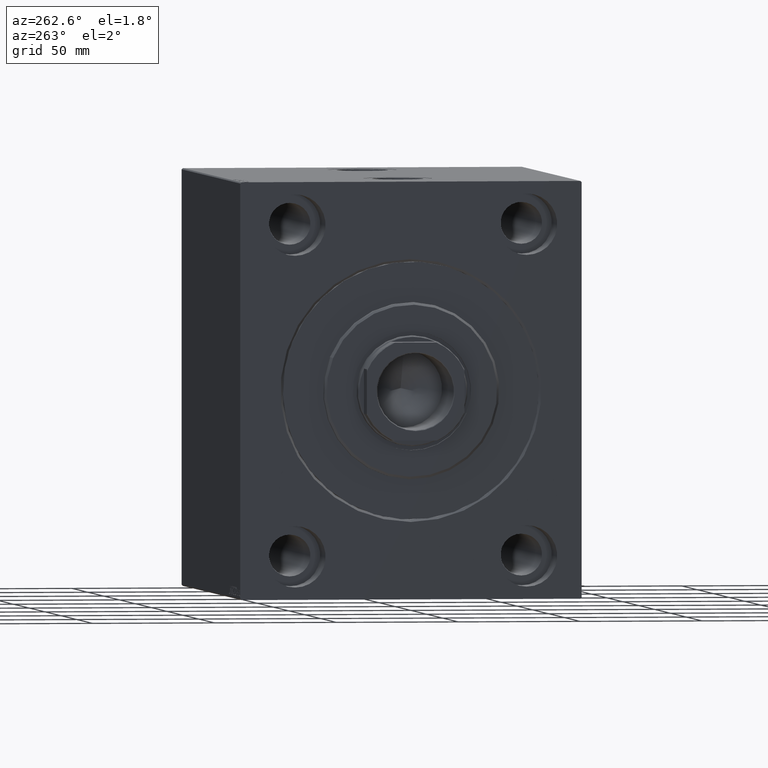
[diagram: clean part render]
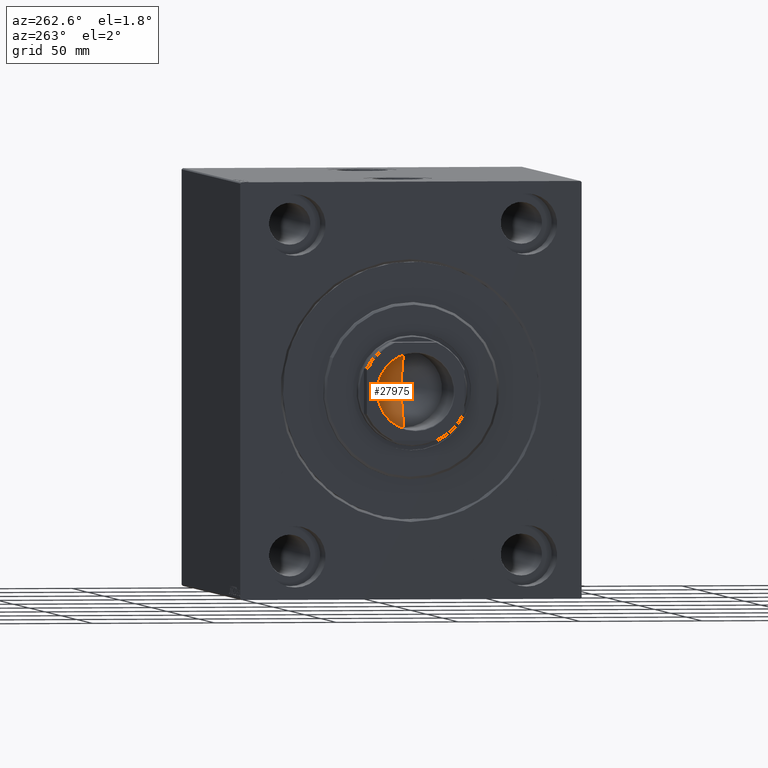
[diagram: same view with one face highlighted and labeled with its STEP entity id]
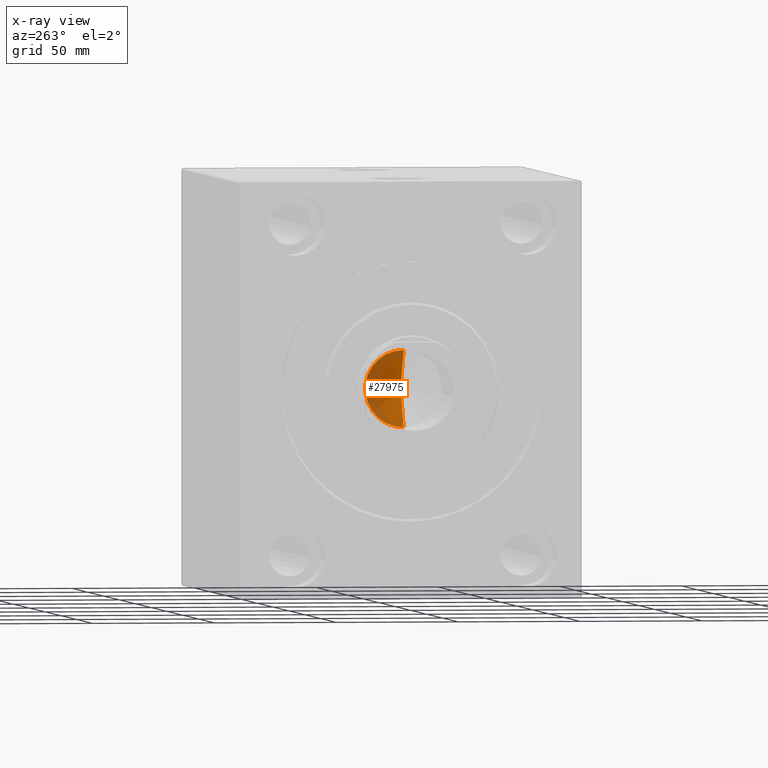
[diagram: x-ray of the same camera — body ghosted, the highlighted face saturated]
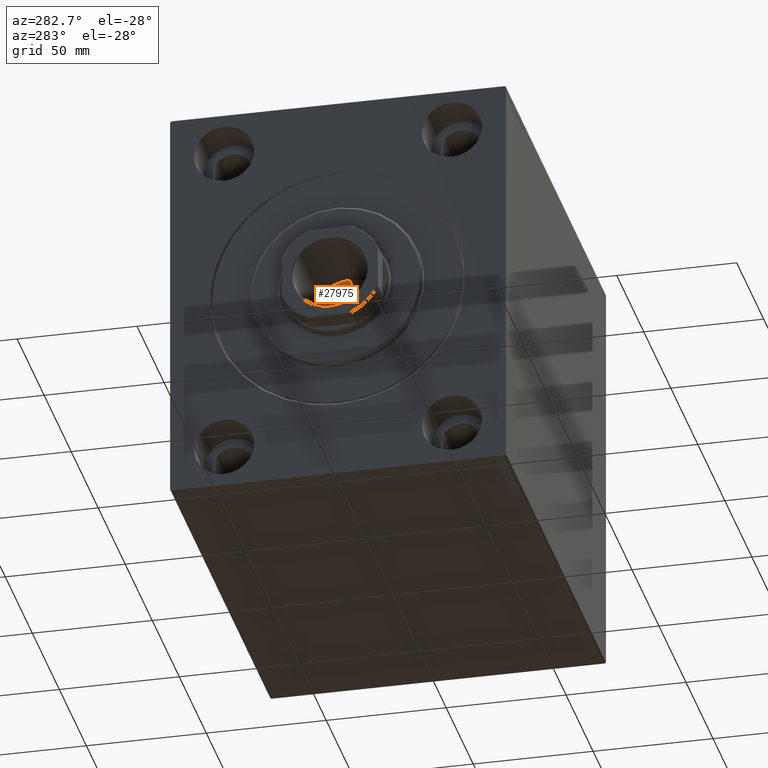
[diagram: same view with one face highlighted and labeled with its STEP entity id]
A machine part, auxiliary view. The second image highlights one B-rep face of the part: STEP entity #27975.
The next image is the same camera in x-ray: the body ghosted, the highlighted face saturated — about 41% of this face is hidden behind the body in this view.
A second angle (auxiliary view) of the same face is appended — the face is thin or edge-on in the first view.
In plain terms, the highlighted conical surface has half-angle 59 deg.
Its self-contained STEP definition (entity closure, byte-faithful):
#570 = FACE_OUTER_BOUND ( 'NONE', #23780, .T. ) ;
#1458 = DIRECTION ( 'NONE',  ( -0.000000000000000000, -0.000000000000000000, 1.000000000000000000 ) ) ;
#3511 = EDGE_CURVE ( 'NONE', #24775, #9275, #20587, .T. ) ;
#3559 = DIRECTION ( 'NONE',  ( -0.000000000000000000, -0.000000000000000000, 1.000000000000000000 ) ) ;
#3976 = CIRCLE ( 'NONE', #26775, 15.74999999999999289 ) ;
#7135 = CARTESIAN_POINT ( 'NONE',  ( 0.000000000000000000, 0.000000000000000000, 136.0000000000000000 ) ) ;
#9275 = VERTEX_POINT ( 'NONE', #26380 ) ;
#11301 = CARTESIAN_POINT ( 'NONE',  ( -15.74999999999999289, 1.928818708657080556E-15, 136.0000000000000000 ) ) ;
#12500 = VECTOR ( 'NONE', #19705, 1000.000000000000000 ) ;
#12905 = VERTEX_POINT ( 'NONE', #11301 ) ;
#12906 = ORIENTED_EDGE ( 'NONE', *, *, #3511, .T. ) ;
#13447 = CARTESIAN_POINT ( 'NONE',  ( -1.199718644317817648E-14, 0.000000000000000000, 126.5364452503159356 ) ) ;
#15055 = DIRECTION ( 'NONE',  ( 1.000000000000000000, 0.000000000000000000, 0.000000000000000000 ) ) ;
#17156 = DIRECTION ( 'NONE',  ( 1.000000000000000000, 0.000000000000000000, 0.000000000000000000 ) ) ;
#17852 = CONICAL_SURFACE ( 'NONE', #42779, 15.74999999999999289, 1.029744258676653867 ) ;
#19705 = DIRECTION ( 'NONE',  ( 0.8571673007021120005, 0.000000000000000000, 0.5150380749100547106 ) ) ;
#20587 = LINE ( 'NONE', #43555, #12500 ) ;
#21721 = VECTOR ( 'NONE', #30733, 1000.000000000000000 ) ;
#23780 = EDGE_LOOP ( 'NONE', ( #29481, #12906, #27256 ) ) ;
#23823 = CARTESIAN_POINT ( 'NONE',  ( -15.74999999999999289, 1.928818708657080556E-15, 136.0000000000000000 ) ) ;
#24775 = VERTEX_POINT ( 'NONE', #13447 ) ;
#26380 = CARTESIAN_POINT ( 'NONE',  ( 15.74999999999999289, 0.000000000000000000, 136.0000000000000000 ) ) ;
#26775 = AXIS2_PLACEMENT_3D ( 'NONE', #7135, #3559, #17156 ) ;
#27256 = ORIENTED_EDGE ( 'NONE', *, *, #38916, .T. ) ;
#27975 = ADVANCED_FACE ( 'NONE', ( #570 ), #17852, .F. ) ;
#29481 = ORIENTED_EDGE ( 'NONE', *, *, #36739, .F. ) ;
#30733 = DIRECTION ( 'NONE',  ( -0.8571673007021120005, 1.049727191138618326E-16, 0.5150380749100547106 ) ) ;
#34310 = LINE ( 'NONE', #23823, #21721 ) ;
#36739 = EDGE_CURVE ( 'NONE', #24775, #12905, #34310, .T. ) ;
#38690 = CARTESIAN_POINT ( 'NONE',  ( 0.000000000000000000, 0.000000000000000000, 136.0000000000000000 ) ) ;
#38916 = EDGE_CURVE ( 'NONE', #9275, #12905, #3976, .T. ) ;
#42779 = AXIS2_PLACEMENT_3D ( 'NONE', #38690, #1458, #15055 ) ;
#43555 = CARTESIAN_POINT ( 'NONE',  ( 15.74999999999999289, 0.000000000000000000, 136.0000000000000000 ) ) ;